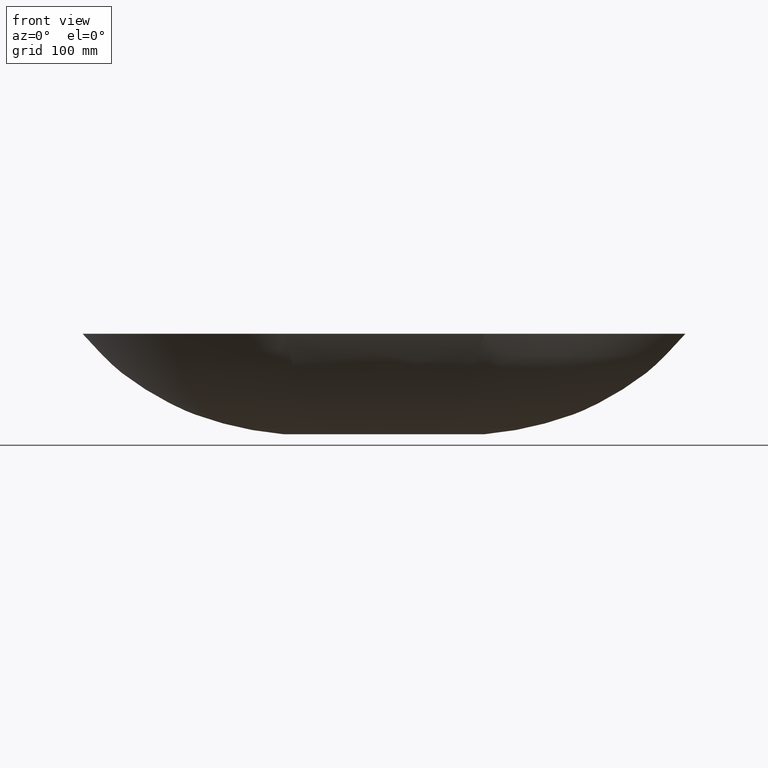
[diagram: clean part render]
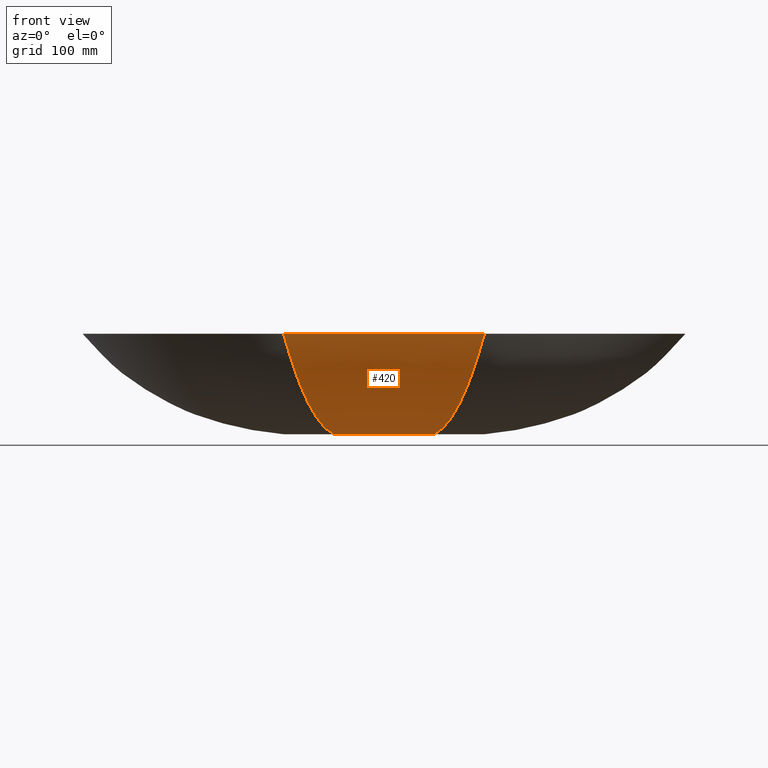
[diagram: same view with one face highlighted and labeled with its STEP entity id]
A machine part, front view. The second image highlights one B-rep face of the part: STEP entity #420.
In plain terms, the highlighted face is a freeform B-spline surface patch.
Its self-contained STEP definition (entity closure, byte-faithful):
#2 = CARTESIAN_POINT ( 'NONE',  ( 111.1991770534109800, -41.51287848957282000, 15.18179570953521000 ) ) ;
#3 = CARTESIAN_POINT ( 'NONE',  ( 129.6667293520581600, -181.0134168475915400, 95.72933969497829300 ) ) ;
#10 = VERTEX_POINT ( 'NONE', #504 ) ;
#41 = CARTESIAN_POINT ( 'NONE',  ( 185.5341905596257800, -124.6800947748722500, 37.17180052762140700 ) ) ;
#53 = VERTEX_POINT ( 'NONE', #741 ) ;
#92 = CARTESIAN_POINT ( 'NONE',  ( 144.5325103867443200, -41.51287848957282000, 15.18179570953520900 ) ) ;
#100 = CARTESIAN_POINT ( 'NONE',  ( 194.5325103867442600, -191.5128784895728100, 115.1817957095352100 ) ) ;
#107 = VERTEX_POINT ( 'NONE', #968 ) ;
#115 = CARTESIAN_POINT ( 'NONE',  ( 234.0726663560771200, -124.6800947748722500, 37.17180052762140700 ) ) ;
#138 = CARTESIAN_POINT ( 'NONE',  ( 161.1991770534109200, -191.5128784895728100, 115.1817957095352100 ) ) ;
#141 = CARTESIAN_POINT ( 'NONE',  ( 66.55286690577841600, -181.0134168475915400, 95.72933969497829300 ) ) ;
#144 = CARTESIAN_POINT ( 'NONE',  ( 181.7600310047365900, -87.19038287276302400, 20.50513386095474300 ) ) ;
#146 = CARTESIAN_POINT ( 'NONE',  ( 222.7829291115019400, -87.19038287276302400, 20.50513386095474300 ) ) ;
#152 = VECTOR ( 'NONE', #1399, 1000.000000000000000 ) ;
#154 = CARTESIAN_POINT ( 'NONE',  ( 131.4808667728169100, -168.5031287497007200, 79.06267302831160700 ) ) ;
#181 = CARTESIAN_POINT ( 'NONE',  ( 161.1991770534109500, -41.51287848957282000, 15.18179570953521200 ) ) ;
#210 = CARTESIAN_POINT ( 'NONE',  ( 190.9991957976715800, -168.5031287497007200, 79.06267302831160700 ) ) ;
#241 = CARTESIAN_POINT ( 'NONE',  ( 140.7371328979711800, -87.19038287276302400, 20.50513386095474300 ) ) ;
#259 = ORIENTED_EDGE ( 'NONE', *, *, #1000, .F. ) ;
#262 = CARTESIAN_POINT ( 'NONE',  ( 261.1991770534108900, -191.5128784895728100, 115.1817957095352100 ) ) ;
#265 = CARTESIAN_POINT ( 'NONE',  ( 255.8944542446176100, -181.0134168475915400, 95.72933969497829300 ) ) ;
#299 = CARTESIAN_POINT ( 'NONE',  ( 99.71423479120585400, -87.19038287276302400, 20.50513386095474300 ) ) ;
#353 = CARTESIAN_POINT ( 'NONE',  ( 127.8658437200775900, -191.5128784895728100, 115.1817957095352100 ) ) ;
#385 = VERTEX_POINT ( 'NONE', #842 ) ;
#415 = LINE ( 'NONE', #138, #152 ) ;
#420 = ADVANCED_FACE ( 'NONE', ( #441 ), #1151, .F. ) ;
#433 = CARTESIAN_POINT ( 'NONE',  ( 71.96253774796231500, -168.5031287497007200, 79.06267302831160700 ) ) ;
#441 = FACE_OUTER_BOUND ( 'NONE', #511, .T. ) ;
#446 = CARTESIAN_POINT ( 'NONE',  ( 245.1901409001936500, -159.8267250232372300, 56.47654704136815000 ) ) ;
#453 = CARTESIAN_POINT ( 'NONE',  ( 88.45723896672305400, -124.6800947748722500, 37.17180052762140700 ) ) ;
#504 = CARTESIAN_POINT ( 'NONE',  ( 61.19917705341095600, -191.5128784895728100, 115.1817957095352100 ) ) ;
#511 = EDGE_LOOP ( 'NONE', ( #816, #259, #789, #796 ) ) ;
#513 = CARTESIAN_POINT ( 'NONE',  ( 61.19917705341095600, -191.5128784895728100, 115.1817957095352100 ) ) ;
#541 = CARTESIAN_POINT ( 'NONE',  ( 192.7805917983378900, -181.0134168475915400, 95.72933969497829300 ) ) ;
#552 = LINE ( 'NONE', #181, #787 ) ;
#572 = CARTESIAN_POINT ( 'NONE',  ( 66.55286690577841600, -181.0134168475915400, 95.72933969497829300 ) ) ;
#591 = EDGE_CURVE ( 'NONE', #10, #107, #1469, .T. ) ;
#624 = CARTESIAN_POINT ( 'NONE',  ( 136.9957147631743900, -124.6800947748722500, 37.17180052762140700 ) ) ;
#633 = CARTESIAN_POINT ( 'NONE',  ( 61.19917705341094900, -191.5128784895728100, 115.1817957095352100 ) ) ;
#687 = CARTESIAN_POINT ( 'NONE',  ( 99.71423479120585400, -87.19038287276302400, 20.50513386095474300 ) ) ;
#739 = CARTESIAN_POINT ( 'NONE',  ( 177.8658437200776300, -41.51287848957281300, 15.18179570953520900 ) ) ;
#741 = CARTESIAN_POINT ( 'NONE',  ( 261.1991770534108400, -191.5128784895728100, 115.1817957095352100 ) ) ;
#742 = CARTESIAN_POINT ( 'NONE',  ( 111.1991770534109800, -41.51287848957282000, 15.18179570953520900 ) ) ;
#776 = CARTESIAN_POINT ( 'NONE',  ( 88.45723896672305400, -124.6800947748722500, 37.17180052762140700 ) ) ;
#787 = VECTOR ( 'NONE', #1427, 1000.000000000000000 ) ;
#789 = ORIENTED_EDGE ( 'NONE', *, *, #591, .T. ) ;
#796 = ORIENTED_EDGE ( 'NONE', *, *, #845, .T. ) ;
#798 = CARTESIAN_POINT ( 'NONE',  ( 211.1991770534109500, -41.51287848957281300, 15.18179570953520900 ) ) ;
#816 = ORIENTED_EDGE ( 'NONE', *, *, #1535, .F. ) ;
#842 = CARTESIAN_POINT ( 'NONE',  ( 211.1991770534109500, -41.51287848957281300, 15.18179570953521000 ) ) ;
#845 = EDGE_CURVE ( 'NONE', #107, #385, #552, .T. ) ;
#871 = B_SPLINE_CURVE_WITH_KNOTS ( 'NONE', 3,
 ( #1060, #446, #1487, #1298 ),
 .UNSPECIFIED., .F., .F.,
 ( 4, 4 ),
 ( 0.0000000000000000000, 1.000000000000000000 ),
 .UNSPECIFIED. ) ;
#965 = CARTESIAN_POINT ( 'NONE',  ( 250.5175248225261600, -168.5031287497007200, 79.06267302831160700 ) ) ;
#968 = CARTESIAN_POINT ( 'NONE',  ( 111.1991770534109800, -41.51287848957282000, 15.18179570953521000 ) ) ;
#973 = CARTESIAN_POINT ( 'NONE',  ( 71.96253774796231500, -168.5031287497007200, 79.06267302831160700 ) ) ;
#1000 = EDGE_CURVE ( 'NONE', #10, #53, #415, .T. ) ;
#1060 = CARTESIAN_POINT ( 'NONE',  ( 261.1991770534108400, -191.5128784895728100, 115.1817957095352100 ) ) ;
#1151 = B_SPLINE_SURFACE_WITH_KNOTS ( 'NONE', 3, 3, ( 
 ( #798, #146, #115, #965, #265, #262 ),
 ( #739, #144, #41, #210, #541, #100 ),
 ( #92, #241, #624, #154, #3, #353 ),
 ( #742, #299, #776, #433, #141, #633 ) ),
 .UNSPECIFIED., .F., .F., .F.,
 ( 4, 4 ),
 ( 4, 2, 4 ),
 ( 0.0000000000000000000, 1.000000000000000000 ),
 ( 0.0000000000000000000, 0.6686419620754450200, 1.000000000000000000 ),
 .UNSPECIFIED. ) ;
#1298 = CARTESIAN_POINT ( 'NONE',  ( 211.1991770534109500, -41.51287848957281300, 15.18179570953521000 ) ) ;
#1399 = DIRECTION ( 'NONE',  ( 1.000000000000000000, -0.0000000000000000000, -0.0000000000000000000 ) ) ;
#1427 = DIRECTION ( 'NONE',  ( 1.000000000000000000, 0.0000000000000000000, -0.0000000000000000000 ) ) ;
#1469 = B_SPLINE_CURVE_WITH_KNOTS ( 'NONE', 3,
 ( #513, #572, #973, #453, #687, #2 ),
 .UNSPECIFIED., .F., .F.,
 ( 4, 2, 4 ),
 ( 0.0000000000000000000, 0.3313580379245549800, 1.000000000000000000 ),
 .UNSPECIFIED. ) ;
#1487 = CARTESIAN_POINT ( 'NONE',  ( 228.5234742335270000, -109.8267250232372200, 23.14321370803480300 ) ) ;
#1535 = EDGE_CURVE ( 'NONE', #53, #385, #871, .T. ) ;